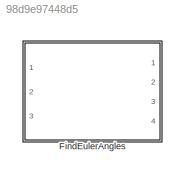
MODEL slx_98d9e97448d5
KIND library
CONFIG AbsTol = auto
CONFIG EnableMultiTasking = off
CONFIG FixedStep = auto
CONFIG MaxStep = auto
CONFIG MinStep = auto
CONFIG RelTol = 1e-3
CONFIG SampleTimeConstraint = Unconstrained
CONFIG Solver = VariableStepAuto
CONFIG SolverName = VariableStepAuto
CONFIG StartTime = 0.0
CONFIG StopTime = 10.0
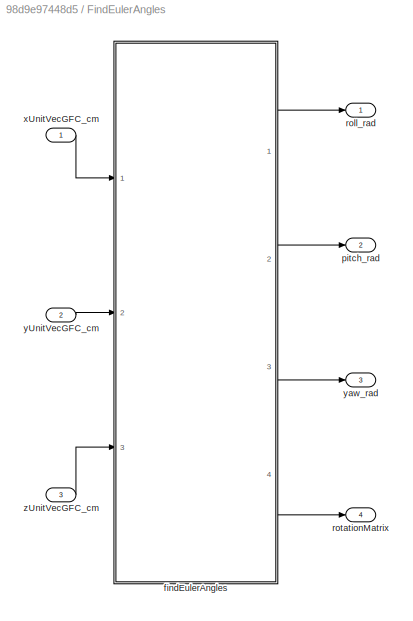
BLOCK [SubSystem] FindEulerAngles
  Ports = [3, 4]
  RequestExecContextInheritance = off
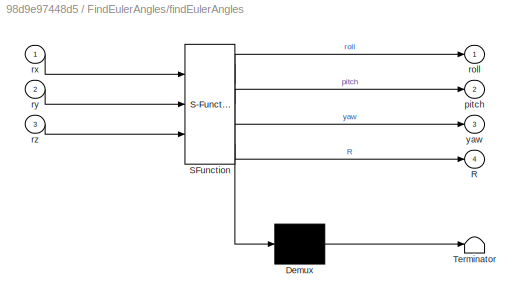
BLOCK [SubSystem] FindEulerAngles/findEulerAngles
  ErrorFcn = Stateflow.Translate.translate
  PermitHierarchicalResolution = ExplicitOnly
  Ports = [3, 4]
  RequestExecContextInheritance = off
  SFBlockType = MATLAB Function
  TreatAsAtomicUnit = on
BLOCK [Demux] FindEulerAngles/findEulerAngles/ Demux 
  Outputs = 1
  Ports = [1, 1]
BLOCK [S-Function] FindEulerAngles/findEulerAngles/ SFunction 
  EnableBusSupport = off
  FunctionName = sf_sfun
  PortCounts = [3 5]
  Ports = [3, 5]
  SFcnIsStateOwnerBlock = off
  SFunctionDeploymentMode = off
  Tag = Stateflow S-Function findEulerAngles_ul 24
BLOCK [Terminator] FindEulerAngles/findEulerAngles/ Terminator 
BLOCK [Outport] FindEulerAngles/findEulerAngles/R
  IconDisplay = Port number
  Port = 4
BLOCK [Outport] FindEulerAngles/findEulerAngles/pitch
  IconDisplay = Port number
  Port = 2
BLOCK [Outport] FindEulerAngles/findEulerAngles/roll
  IconDisplay = Port number
BLOCK [Inport] FindEulerAngles/findEulerAngles/rx
  IconDisplay = Port number
BLOCK [Inport] FindEulerAngles/findEulerAngles/ry
  IconDisplay = Port number
  Port = 2
BLOCK [Inport] FindEulerAngles/findEulerAngles/rz
  IconDisplay = Port number
  Port = 3
BLOCK [Outport] FindEulerAngles/findEulerAngles/yaw
  IconDisplay = Port number
  Port = 3
BLOCK [Outport] FindEulerAngles/pitch_rad
  IconDisplay = Port number
  Port = 2
BLOCK [Outport] FindEulerAngles/roll_rad
  IconDisplay = Port number
BLOCK [Outport] FindEulerAngles/rotationMatrix
  IconDisplay = Port number
  Port = 4
BLOCK [Inport] FindEulerAngles/xUnitVecGFC_cm
  IconDisplay = Port number
BLOCK [Inport] FindEulerAngles/yUnitVecGFC_cm
  IconDisplay = Port number
  Port = 2
BLOCK [Outport] FindEulerAngles/yaw_rad
  IconDisplay = Port number
  Port = 3
BLOCK [Inport] FindEulerAngles/zUnitVecGFC_cm
  IconDisplay = Port number
  Port = 3
LINE FindEulerAngles/findEulerAngles:1 -> FindEulerAngles/roll_rad:1
LINE FindEulerAngles/findEulerAngles:2 -> FindEulerAngles/pitch_rad:1
LINE FindEulerAngles/findEulerAngles:3 -> FindEulerAngles/yaw_rad:1
LINE FindEulerAngles/findEulerAngles:4 -> FindEulerAngles/rotationMatrix:1
LINE FindEulerAngles/xUnitVecGFC_cm:1 -> FindEulerAngles/findEulerAngles:1
LINE FindEulerAngles/yUnitVecGFC_cm:1 -> FindEulerAngles/findEulerAngles:2
LINE FindEulerAngles/zUnitVecGFC_cm:1 -> FindEulerAngles/findEulerAngles:3
CHART FindEulerAngles/findEulerAngles states=1 transitions=1
  STATE_LABEL 'eML_blk_kernel()'
  STATE_LABEL 'SCRIPT:\nfunction [roll,pitch,yaw,R] = fcn(rx,ry,rz)\n%#codegen\n[roll,pitch,yaw,R] = findEulerAngles(rx,ry,rz);\nend'
